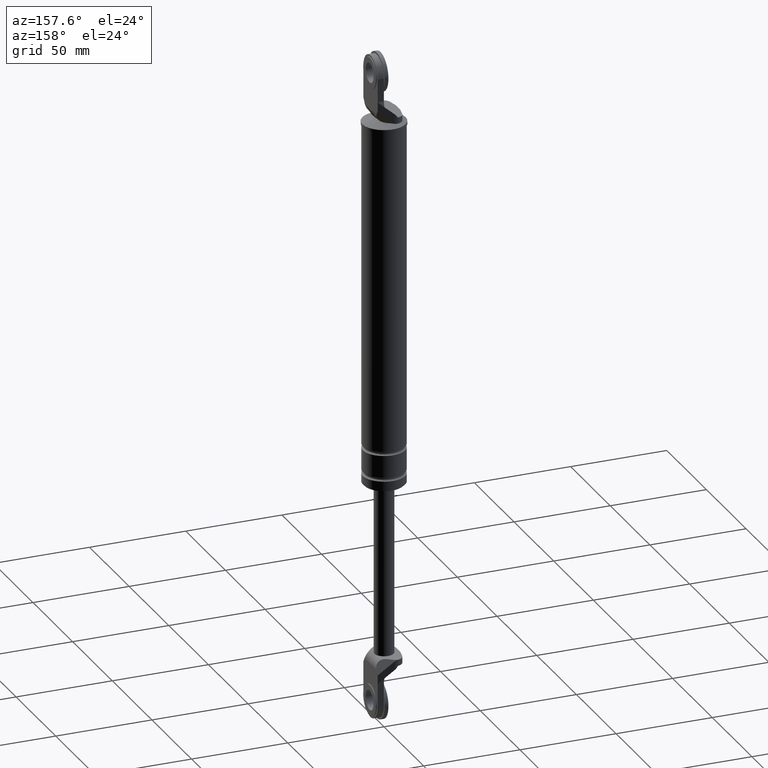
[diagram: clean part render]
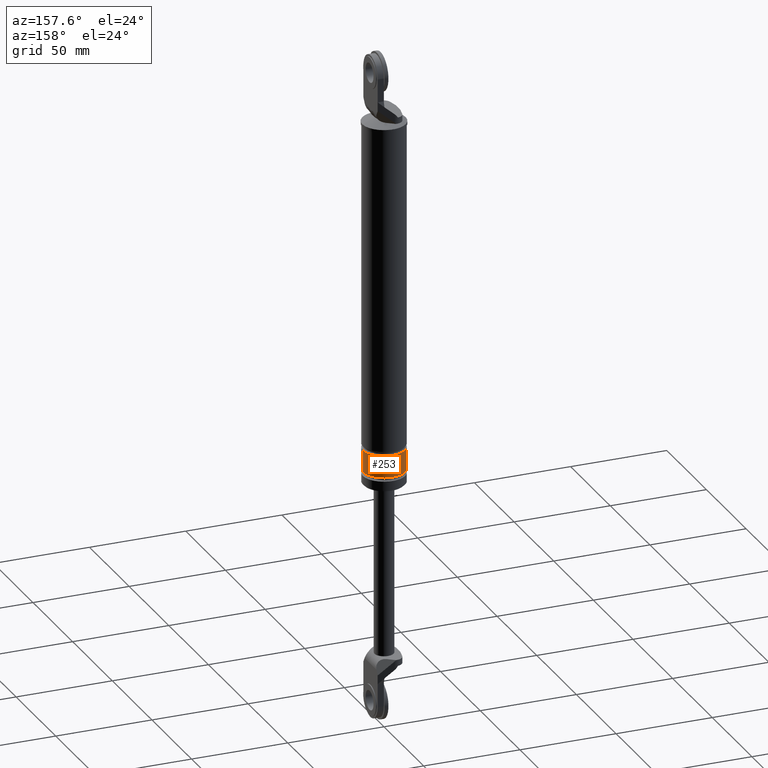
[diagram: same view with one face highlighted and labeled with its STEP entity id]
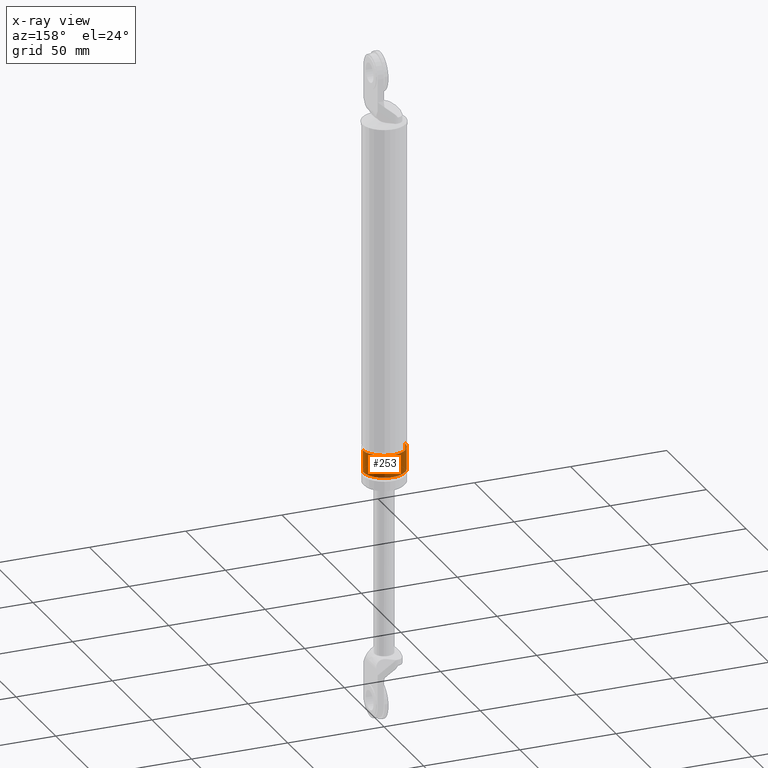
[diagram: x-ray of the same camera — body ghosted, the highlighted face saturated]
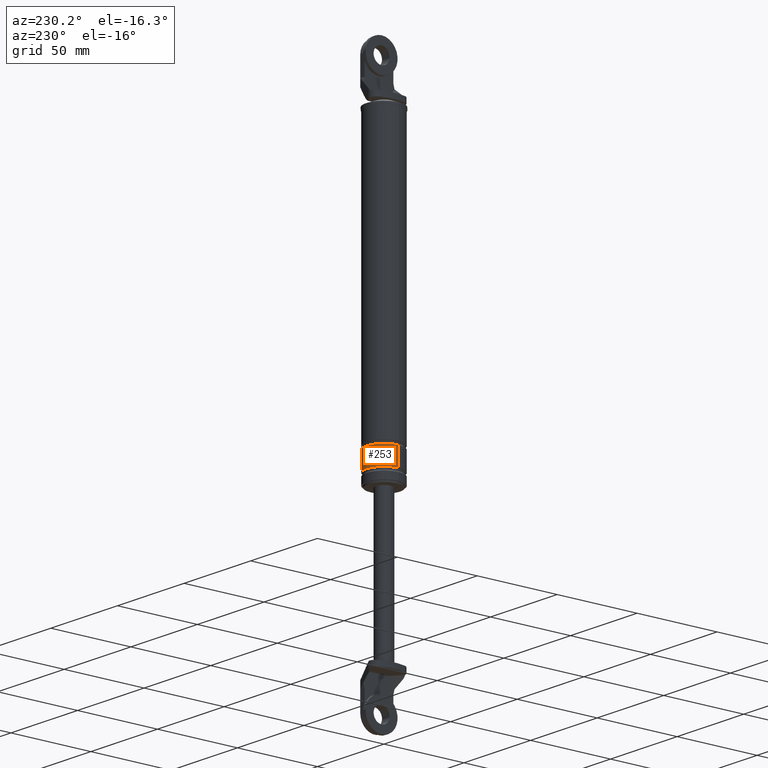
[diagram: same view with one face highlighted and labeled with its STEP entity id]
A machine part, auxiliary view. The second image highlights one B-rep face of the part: STEP entity #253.
The next image is the same camera in x-ray: the body ghosted, the highlighted face saturated — about 0% of this face is hidden behind the body in this view.
A second angle (auxiliary view) of the same face is appended — the face is thin or edge-on in the first view.
In plain terms, the highlighted cylindrical surface (edge-blend (fillet) strip) has radius 11 mm, axis along (0, 0, 1).
Its self-contained STEP definition (entity closure, byte-faithful):
#253=ADVANCED_FACE('',(#785),#784,.T.);
#784=CYLINDRICAL_SURFACE('',#1536,1.10000000000E+001);
#785=FACE_OUTER_BOUND('',#1537,.T.);
#1533=CARTESIAN_POINT('',(0.00000000000E+000,3.58204186421E-014,0.00000000000E+000));
#1534=DIRECTION('',(-0.00000000000E+000,-0.00000000000E+000,1.00000000000E+000));
#1535=DIRECTION('',(1.00000000000E+000,0.00000000000E+000,0.00000000000E+000));
#1536=AXIS2_PLACEMENT_3D('',#1533,#1534,#1535);
#1537=EDGE_LOOP('',(#1990,#1991,#1992,#1993));
#1990=ORIENTED_EDGE('',*,*,#2271,.T.);
#1991=ORIENTED_EDGE('',*,*,#2279,.F.);
#1992=ORIENTED_EDGE('',*,*,#2265,.F.);
#1993=ORIENTED_EDGE('',*,*,#2280,.T.);
#2265=EDGE_CURVE('',#3072,#3073,#3074,.T.);
#2271=EDGE_CURVE('',#3113,#3106,#3114,.T.);
#2279=EDGE_CURVE('',#3073,#3106,#3162,.T.);
#2280=EDGE_CURVE('',#3072,#3113,#3168,.T.);
#3072=VERTEX_POINT('',#4117);
#3073=VERTEX_POINT('',#4118);
#3074=CIRCLE('',#4122,1.10000000000E+001);
#3106=VERTEX_POINT('',#4143);
#3113=VERTEX_POINT('',#4149);
#3114=CIRCLE('',#4153,1.10000000000E+001);
#3162=(BOUNDED_CURVE() B_SPLINE_CURVE(1,(#4175,#4176),.UNSPECIFIED.,.F.,.F.) B_SPLINE_CURVE_WITH_KNOTS((2,2),(8.33333343261E-002,9.16666667006E-001),.UNSPECIFIED.) CURVE() GEOMETRIC_REPRESENTATION_ITEM() RATIONAL_B_SPLINE_CURVE((1.00000000000E+000,1.00000000000E+000)) REPRESENTATION_ITEM('') );
#3168=(BOUNDED_CURVE() B_SPLINE_CURVE(1,(#4177,#4178),.UNSPECIFIED.,.F.,.F.) B_SPLINE_CURVE_WITH_KNOTS((2,2),(8.33333333333E-002,9.16666666667E-001),.UNSPECIFIED.) CURVE() GEOMETRIC_REPRESENTATION_ITEM() RATIONAL_B_SPLINE_CURVE((7.50000000000E-001,7.50000000000E-001)) REPRESENTATION_ITEM('') );
#4117=CARTESIAN_POINT('',(-1.10000000000E+001,3.58204186421E-014,-9.65000150000E+001));
#4118=CARTESIAN_POINT('',(1.10000000000E+001,3.61192557345E-014,-9.65000150000E+001));
#4119=CARTESIAN_POINT('',(0.00000000000E+000,3.58204186421E-014,-9.65000150000E+001));
#4120=DIRECTION('',(-0.00000000000E+000,0.00000000000E+000,-1.00000000000E+000));
#4121=DIRECTION('',(-1.00000000000E+000,-1.22460635382E-016,0.00000000000E+000));
#4122=AXIS2_PLACEMENT_3D('',#4119,#4120,#4121);
#4143=CARTESIAN_POINT('',(1.10000000000E+001,3.61192557345E-014,-8.50000150000E+001));
#4149=CARTESIAN_POINT('',(-1.10000000000E+001,3.58204186421E-014,-8.50000150000E+001));
#4150=CARTESIAN_POINT('',(0.00000000000E+000,3.58204186421E-014,-8.50000150000E+001));
#4151=DIRECTION('',(-0.00000000000E+000,0.00000000000E+000,-1.00000000000E+000));
#4152=DIRECTION('',(-1.00000000000E+000,-1.22460635382E-016,0.00000000000E+000));
#4153=AXIS2_PLACEMENT_3D('',#4150,#4151,#4152);
#4175=CARTESIAN_POINT('',(1.10000000000E+001,3.58204186421E-014,-9.65000149863E+001));
#4176=CARTESIAN_POINT('',(1.10000000000E+001,3.58204186421E-014,-8.50000149953E+001));
#4177=CARTESIAN_POINT('',(-1.10000000000E+001,3.55271367880E-014,-9.65000150000E+001));
#4178=CARTESIAN_POINT('',(-1.10000000000E+001,3.55271367880E-014,-8.50000150000E+001));